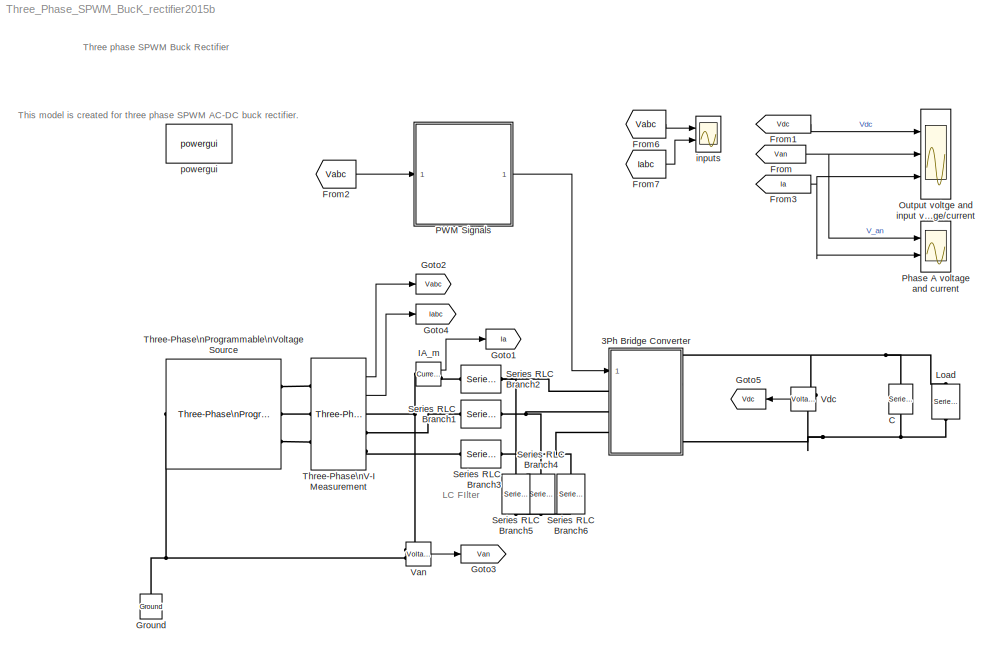
MODEL Three_Phase_SPWM_BucK_rectifier2015b
KIND model
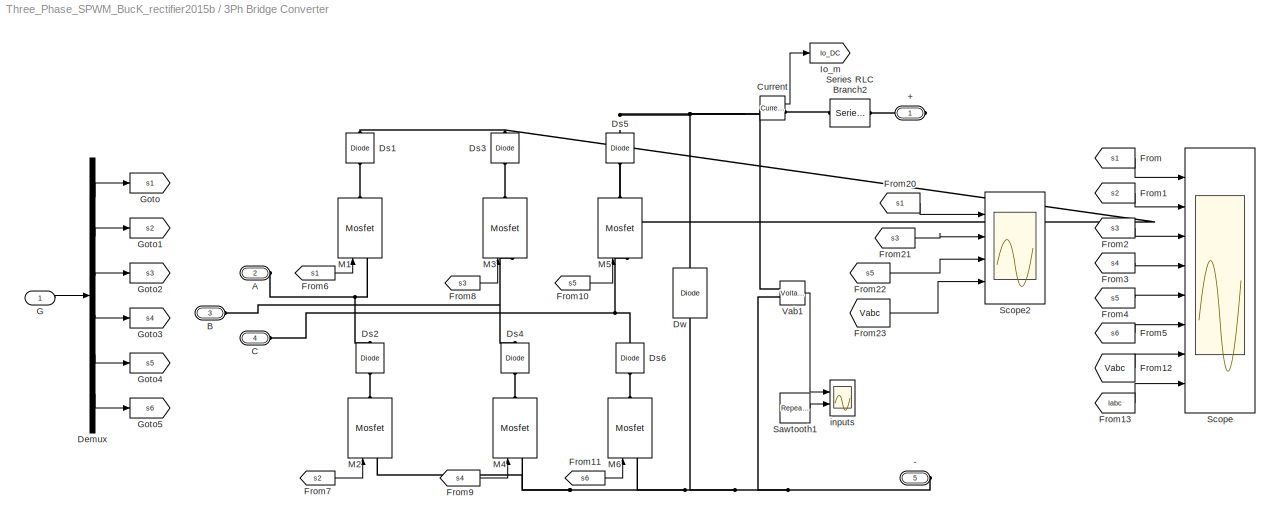
BLOCK [SubSystem] 3Ph Bridge Converter
  Ports = [1, 0, 0, 0, 0, 3, 2]
  RequestExecContextInheritance = off
  SID = 356
  Variant = off
BLOCK [PMIOPort] 3Ph Bridge Converter/+
  Port = 1
  SID = 377
  Side = Right
BLOCK [PMIOPort] 3Ph Bridge Converter/-
  Port = 5
  SID = 573
  Side = Right
BLOCK [PMIOPort] 3Ph Bridge Converter/A
  Port = 2
  SID = 378
  Side = Left
BLOCK [PMIOPort] 3Ph Bridge Converter/B
  Port = 3
  SID = 379
  Side = Left
BLOCK [PMIOPort] 3Ph Bridge Converter/C
  Port = 4
  SID = 380
  Side = Left
BLOCK [Reference] 3Ph Bridge Converter/Current  REF=powerlib/Measurements/Current Measurement
  OutputType = Complex
  PSBequivalent = 0
  PhasorSimulation = off
  Ports = [0, 1, 0, 0, 0, 1, 1]
  SID = 619
  SourceBlock = powerlib/Measurements/Current Measurement
  SourceType = Current Measurement
BLOCK [Demux] 3Ph Bridge Converter/Demux
  DisplayOption = bar
  Outputs = 6
  Ports = [1, 6]
  SID = 358
BLOCK [Reference] 3Ph Bridge Converter/Ds1  REF=powerlib/Power\nElectronics/Diode
  Cs = 250e-9
  IC = 0
  Lon = 0
  Measurements = off
  Ports = [0, 0, 0, 0, 0, 1, 1]
  Ron = 0.0001
  Rs = 5000
  SID = 729
  SourceBlock = powerlib/Power\nElectronics/Diode
  SourceType = Diode
  UseSnubber = off
  Vf = 0
BLOCK [Reference] 3Ph Bridge Converter/Ds2  REF=powerlib/Power\nElectronics/Diode
  Cs = 250e-9
  IC = 0
  Lon = 0
  Measurements = off
  Ports = [0, 0, 0, 0, 0, 1, 1]
  Ron = 0.0001
  Rs = 5000
  SID = 731
  SourceBlock = powerlib/Power\nElectronics/Diode
  SourceType = Diode
  UseSnubber = off
  Vf = 0
BLOCK [Reference] 3Ph Bridge Converter/Ds3  REF=powerlib/Power\nElectronics/Diode
  Cs = 250e-9
  IC = 0
  Lon = 0
  Measurements = off
  Ports = [0, 0, 0, 0, 0, 1, 1]
  Ron = 0.0001
  Rs = 5000
  SID = 732
  SourceBlock = powerlib/Power\nElectronics/Diode
  SourceType = Diode
  UseSnubber = off
  Vf = 0
BLOCK [Reference] 3Ph Bridge Converter/Ds4  REF=powerlib/Power\nElectronics/Diode
  Cs = 250e-9
  IC = 0
  Lon = 0
  Measurements = off
  Ports = [0, 0, 0, 0, 0, 1, 1]
  Ron = 0.0001
  Rs = 5000
  SID = 733
  SourceBlock = powerlib/Power\nElectronics/Diode
  SourceType = Diode
  UseSnubber = off
  Vf = 0
BLOCK [Reference] 3Ph Bridge Converter/Ds5  REF=powerlib/Power\nElectronics/Diode
  Cs = 250e-9
  IC = 0
  Lon = 0
  Measurements = off
  Ports = [0, 0, 0, 0, 0, 1, 1]
  Ron = 0.0001
  Rs = 5000
  SID = 734
  SourceBlock = powerlib/Power\nElectronics/Diode
  SourceType = Diode
  UseSnubber = off
  Vf = 0
BLOCK [Reference] 3Ph Bridge Converter/Ds6  REF=powerlib/Power\nElectronics/Diode
  Cs = 250e-9
  IC = 0
  Lon = 0
  Measurements = off
  Ports = [0, 0, 0, 0, 0, 1, 1]
  Ron = 0.0001
  Rs = 5000
  SID = 735
  SourceBlock = powerlib/Power\nElectronics/Diode
  SourceType = Diode
  UseSnubber = off
  Vf = 0
BLOCK [Reference] 3Ph Bridge Converter/Dw  REF=powerlib/Power\nElectronics/Diode
  Cs = 250e-9
  IC = 0
  Lon = 0
  Measurements = off
  Ports = [0, 0, 0, 0, 0, 1, 1]
  Ron = 0.0001
  Rs = 5000
  SID = 736
  SourceBlock = powerlib/Power\nElectronics/Diode
  SourceType = Diode
  UseSnubber = off
  Vf = 0
BLOCK [From] 3Ph Bridge Converter/From
  GotoTag = s1
  SID = 698
BLOCK [From] 3Ph Bridge Converter/From1
  GotoTag = s2
  SID = 699
BLOCK [From] 3Ph Bridge Converter/From10
  CloseFcn = tagdialog Close
  GotoTag = s5
  SID = 359
BLOCK [From] 3Ph Bridge Converter/From11
  CloseFcn = tagdialog Close
  GotoTag = s6
  SID = 360
BLOCK [From] 3Ph Bridge Converter/From12
  GotoTag = Vabc
  SID = 770
  TagVisibility = global
BLOCK [From] 3Ph Bridge Converter/From13
  GotoTag = Iabc
  SID = 772
  TagVisibility = global
BLOCK [From] 3Ph Bridge Converter/From2
  GotoTag = s3
  SID = 700
BLOCK [From] 3Ph Bridge Converter/From20
  GotoTag = s1
  SID = 760
BLOCK [From] 3Ph Bridge Converter/From21
  GotoTag = s3
  SID = 761
BLOCK [From] 3Ph Bridge Converter/From22
  GotoTag = s5
  SID = 762
BLOCK [From] 3Ph Bridge Converter/From23
  GotoTag = Vabc
  SID = 763
  TagVisibility = global
BLOCK [From] 3Ph Bridge Converter/From3
  GotoTag = s4
  SID = 701
BLOCK [From] 3Ph Bridge Converter/From4
  GotoTag = s5
  SID = 702
BLOCK [From] 3Ph Bridge Converter/From5
  GotoTag = s6
  SID = 703
BLOCK [From] 3Ph Bridge Converter/From6
  CloseFcn = tagdialog Close
  GotoTag = s1
  SID = 361
BLOCK [From] 3Ph Bridge Converter/From7
  CloseFcn = tagdialog Close
  GotoTag = s2
  SID = 362
BLOCK [From] 3Ph Bridge Converter/From8
  CloseFcn = tagdialog Close
  GotoTag = s3
  SID = 363
BLOCK [From] 3Ph Bridge Converter/From9
  CloseFcn = tagdialog Close
  GotoTag = s4
  SID = 364
BLOCK [Inport] 3Ph Bridge Converter/G
  IconDisplay = Port number
  SID = 357
BLOCK [Goto] 3Ph Bridge Converter/Goto
  GotoTag = s1
  SID = 365
BLOCK [Goto] 3Ph Bridge Converter/Goto1
  GotoTag = s2
  SID = 366
BLOCK [Goto] 3Ph Bridge Converter/Goto2
  GotoTag = s3
  SID = 367
BLOCK [Goto] 3Ph Bridge Converter/Goto3
  GotoTag = s4
  SID = 368
BLOCK [Goto] 3Ph Bridge Converter/Goto4
  GotoTag = s5
  SID = 369
BLOCK [Goto] 3Ph Bridge Converter/Goto5
  GotoTag = s6
  SID = 370
BLOCK [Goto] 3Ph Bridge Converter/Io_m
  GotoTag = Io_DC
  SID = 652
BLOCK [Reference] 3Ph Bridge Converter/M1  REF=powerlib/Power\nElectronics/Mosfet
  Cs = inf
  IC = 0
  Lon = 0
  Measurements = off
  Ports = [1, 0, 0, 0, 0, 1, 1]
  Rd = 0.01
  Ron = 0.1
  Rs = 1e5
  SID = 764
  SourceBlock = powerlib/Power\nElectronics/Mosfet
  SourceType = Mosfet
  Vfd = 0
BLOCK [Reference] 3Ph Bridge Converter/M2  REF=powerlib/Power\nElectronics/Mosfet
  Cs = inf
  IC = 0
  Lon = 0
  Measurements = off
  Ports = [1, 0, 0, 0, 0, 1, 1]
  Rd = 0.01
  Ron = 0.1
  Rs = 1e5
  SID = 765
  SourceBlock = powerlib/Power\nElectronics/Mosfet
  SourceType = Mosfet
  Vfd = 0
BLOCK [Reference] 3Ph Bridge Converter/M3  REF=powerlib/Power\nElectronics/Mosfet
  Cs = inf
  IC = 0
  Lon = 0
  Measurements = off
  Ports = [1, 0, 0, 0, 0, 1, 1]
  Rd = 0.01
  Ron = 0.1
  Rs = 1e5
  SID = 766
  SourceBlock = powerlib/Power\nElectronics/Mosfet
  SourceType = Mosfet
  Vfd = 0
BLOCK [Reference] 3Ph Bridge Converter/M4  REF=powerlib/Power\nElectronics/Mosfet
  Cs = inf
  IC = 0
  Lon = 0
  Measurements = off
  Ports = [1, 0, 0, 0, 0, 1, 1]
  Rd = 0.01
  Ron = 0.1
  Rs = 1e5
  SID = 767
  SourceBlock = powerlib/Power\nElectronics/Mosfet
  SourceType = Mosfet
  Vfd = 0
BLOCK [Reference] 3Ph Bridge Converter/M5  REF=powerlib/Power\nElectronics/Mosfet
  Cs = inf
  IC = 0
  Lon = 0
  Measurements = off
  Ports = [1, 0, 0, 0, 0, 1, 1]
  Rd = 0.01
  Ron = 0.1
  Rs = 1e5
  SID = 768
  SourceBlock = powerlib/Power\nElectronics/Mosfet
  SourceType = Mosfet
  Vfd = 0
BLOCK [Reference] 3Ph Bridge Converter/M6  REF=powerlib/Power\nElectronics/Mosfet
  Cs = inf
  IC = 0
  Lon = 0
  Measurements = off
  Ports = [1, 0, 0, 0, 0, 1, 1]
  Rd = 0.01
  Ron = 0.1
  Rs = 1e5
  SID = 769
  SourceBlock = powerlib/Power\nElectronics/Mosfet
  SourceType = Mosfet
  Vfd = 0
BLOCK [Reference] 3Ph Bridge Converter/Sawtooth1  REF=simulink/Sources/Repeating\nSequence
  Ports = [0, 1]
  SID = 777
  SourceBlock = simulink/Sources/Repeating\nSequence
  SourceType = Repeating table
  rep_seq_t = [0 1/10e3]
  rep_seq_y = [0 1]
BLOCK [Scope] 3Ph Bridge Converter/Scope
  NumInputPorts = 8
  Ports = [8]
  SID = 746
  ScopeSpecificationString = Simulink.scopes.TimeScopeBlockCfg('CurrentConfiguration', extmgr.ConfigurationSet(extmgr.Configuration('Core','General UI',true),extmgr.Configuration('Core','Source UI',true),extmgr.Configuration('Sources','WiredSimulink',true),extmgr.Configuration('Visuals','Time Domain',true,'SerializedDisplays',{struct('MinYLimReal','-0.125','MaxYLimReal','1.125','YLabelReal','','MinYLimMag','0.00000','MaxYLimM...<+6436ch>
BLOCK [Scope] 3Ph Bridge Converter/Scope2
  NumInputPorts = 4
  Ports = [4]
  SID = 759
  ScopeSpecificationString = Simulink.scopes.TimeScopeBlockCfg('CurrentConfiguration', extmgr.ConfigurationSet(extmgr.Configuration('Core','General UI',true,'FigureColor',[0.156862745098039 0.156862745098039 0.156862745098039]),extmgr.Configuration('Core','Source UI',true),extmgr.Configuration('Sources','WiredSimulink',true,'DataLoggingVariableName','ScopeData2','DataLoggingSaveFormat','StructureWithTime','DataLoggingMaxPoint...<+6515ch>
BLOCK [Reference] 3Ph Bridge Converter/Series RLC Branch2  REF=powerlib/Elements/Series RLC Branch
  BranchType = L
  Capacitance = 200e-6
  Inductance = 2.5e-3
  InitialCurrent = 0
  InitialVoltage = 0
  LConnTagsString = __new0
  Measurements = None
  Ports = [0, 0, 0, 0, 0, 1, 1]
  RConnTagsString = __new0
  Resistance = 0.1
  SID = 737
  SetiL0 = off
  Setx0 = off
  SourceBlock = powerlib/Elements/Series RLC Branch
  SourceType = Series RLC Branch
BLOCK [Reference] 3Ph Bridge Converter/Vab1  REF=powerlib/Measurements/Voltage Measurement
  AttributesFormatString = \\n
  OutputType = Magnitude
  PSBequivalent = 0
  PhasorSimulation = off
  Ports = [0, 1, 0, 0, 0, 2]
  SID = 711
  SourceBlock = powerlib/Measurements/Voltage Measurement
  SourceType = Voltage Measurement
  Tag = PoWeRsYsTeMmEaSuReMeNt
BLOCK [Scope] 3Ph Bridge Converter/inputs
  NumInputPorts = 2
  Ports = [2]
  SID = 776
  ScopeSpecificationString = Simulink.scopes.TimeScopeBlockCfg('CurrentConfiguration', extmgr.ConfigurationSet(extmgr.Configuration('Core','General UI',true),extmgr.Configuration('Core','Source UI',true),extmgr.Configuration('Sources','WiredSimulink',true,'DataLoggingVariableName','ScopeData1'),extmgr.Configuration('Visuals','Time Domain',true,'SerializedDisplays',{struct('MinYLimReal','-799.03716','MaxYLimReal','740.06352','...<+2179ch>
BLOCK [Reference] C  REF=powerlib/Elements/Series RLC Branch
  BranchType = C
  Capacitance = 1000e-6
  Inductance = 1e-3
  InitialCurrent = 0
  InitialVoltage = 0
  LConnTagsString = __new0
  Measurements = None
  Ports = [0, 0, 0, 0, 0, 1, 1]
  RConnTagsString = __new0
  Resistance = 1
  SID = 578
  SetiL0 = off
  Setx0 = off
  SourceBlock = powerlib/Elements/Series RLC Branch
  SourceType = Series RLC Branch
BLOCK [From] From
  GotoTag = Van
  SID = 624
  TagVisibility = global
BLOCK [From] From1
  GotoTag = Vdc
  SID = 43
  TagVisibility = global
BLOCK [From] From2
  GotoTag = Vabc
  SID = 724
  TagVisibility = global
BLOCK [From] From3
  GotoTag = Ia
  SID = 589
  TagVisibility = global
BLOCK [From] From6
  GotoTag = Vabc
  SID = 716
  TagVisibility = global
BLOCK [From] From7
  GotoTag = Iabc
  SID = 717
  TagVisibility = global
BLOCK [Goto] Goto1
  GotoTag = Ia
  SID = 623
  TagVisibility = global
BLOCK [Goto] Goto2
  GotoTag = Vabc
  SID = 654
  TagVisibility = global
BLOCK [Goto] Goto3
  GotoTag = Van
  SID = 602
  TagVisibility = global
BLOCK [Goto] Goto4
  GotoTag = Iabc
  SID = 688
  TagVisibility = global
BLOCK [Goto] Goto5
  GotoTag = Vdc
  SID = 21
  TagVisibility = global
BLOCK [Reference] Ground  REF=powerlib/Elements/Ground
  LConnTagsString = a
  Ports = [0, 0, 0, 0, 0, 1]
  SID = 627
  SourceBlock = powerlib/Elements/Ground
  SourceType = Ground
BLOCK [Reference] IA_m  REF=powerlib/Measurements/Current Measurement
  OutputType = Complex
  PSBequivalent = 0
  PhasorSimulation = off
  Ports = [0, 1, 0, 0, 0, 1, 1]
  SID = 622
  SourceBlock = powerlib/Measurements/Current Measurement
  SourceType = Current Measurement
BLOCK [Reference] Load  REF=powerlib/Elements/Series RLC Branch
  BranchType = R
  Capacitance = 0
  Inductance = 1e-3
  InitialCurrent = 0
  InitialVoltage = 0
  LConnTagsString = __new0
  Measurements = None
  Ports = [0, 0, 0, 0, 0, 1, 1]
  RConnTagsString = __new0
  Resistance = 10
  SID = 558
  SetiL0 = off
  Setx0 = off
  SourceBlock = powerlib/Elements/Series RLC Branch
  SourceType = Series RLC Branch
BLOCK [Scope] Output voltge and input voltage//current
  NumInputPorts = 3
  Ports = [3]
  SID = 738
  ScopeSpecificationString = Simulink.scopes.TimeScopeBlockCfg('CurrentConfiguration', extmgr.ConfigurationSet(extmgr.Configuration('Core','General UI',true),extmgr.Configuration('Core','Source UI',true),extmgr.Configuration('Sources','WiredSimulink',true),extmgr.Configuration('Visuals','Time Domain',true,'SerializedDisplays',{struct('MinYLimReal','377.69234','MaxYLimReal','476.87865','YLabelReal','','MinYLimMag','377.69234',...<+2938ch>
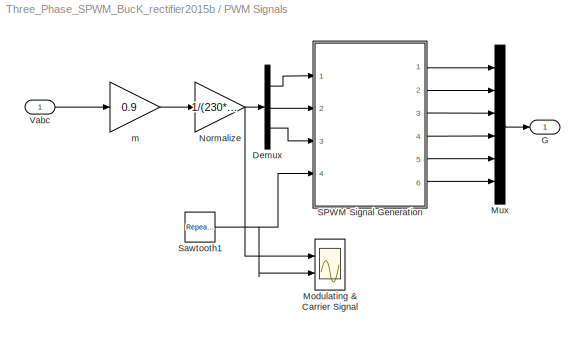
BLOCK [SubSystem] PWM Signals
  Ports = [1, 1]
  RequestExecContextInheritance = off
  SID = 634
  Variant = off
BLOCK [Demux] PWM Signals/Demux
  DisplayOption = bar
  Outputs = 3
  Ports = [1, 3]
  SID = 751
BLOCK [Outport] PWM Signals/G
  IconDisplay = Port number
  SID = 757
BLOCK [Scope] PWM Signals/Modulating & Carrier Signal 
  NumInputPorts = 2
  Ports = [2]
  SID = 774
  ScopeSpecificationString = Simulink.scopes.TimeScopeBlockCfg('CurrentConfiguration', extmgr.ConfigurationSet(extmgr.Configuration('Core','General UI',true,'FigureColor',[0.156862745098039 0.156862745098039 0.156862745098039]),extmgr.Configuration('Core','Source UI',true),extmgr.Configuration('Sources','WiredSimulink',true,'DataLoggingVariableName','ScopeData1','DataLoggingSaveFormat','StructureWithTime','DataLoggingMaxPoint...<+2311ch>
BLOCK [Mux] PWM Signals/Mux
  DisplayOption = bar
  Inputs = 6
  Ports = [6, 1]
  SID = 755
BLOCK [Gain] PWM Signals/Normalize
  Gain = 1/(230*1.414)
  OutDataTypeStr = Inherit: Inherit via internal rule
  ParamDataTypeStr = Inherit: Inherit via internal rule
  SID = 758
  SaturateOnIntegerOverflow = off
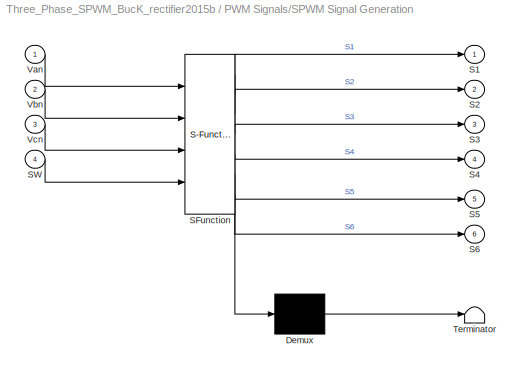
BLOCK [SubSystem] PWM Signals/SPWM Signal Generation
  ErrorFcn = Stateflow.Translate.translate
  PermitHierarchicalResolution = ExplicitOnly
  Ports = [4, 6]
  RequestExecContextInheritance = off
  SFBlockType = MATLAB Function
  SID = 752
  TreatAsAtomicUnit = on
  Variant = off
BLOCK [Demux] PWM Signals/SPWM Signal Generation/ Demux 
  Outputs = 1
  Ports = [1, 1]
  SID = 752::20
BLOCK [S-Function] PWM Signals/SPWM Signal Generation/ SFunction 
  EnableBusSupport = on
  FunctionName = sf_sfun
  PortCounts = [4 7]
  Ports = [4, 7]
  SFunctionDeploymentMode = off
  SID = 752::19
  Tag = Stateflow S-Function Three_Phase_SPWM_BucK_rectifier2015b 2
BLOCK [Terminator] PWM Signals/SPWM Signal Generation/ Terminator 
  SID = 752::21
BLOCK [Outport] PWM Signals/SPWM Signal Generation/S1
  IconDisplay = Port number
  SID = 752::5
BLOCK [Outport] PWM Signals/SPWM Signal Generation/S2
  IconDisplay = Port number
  Port = 2
  SID = 752::25
BLOCK [Outport] PWM Signals/SPWM Signal Generation/S3
  IconDisplay = Port number
  Port = 3
  SID = 752::26
BLOCK [Outport] PWM Signals/SPWM Signal Generation/S4
  IconDisplay = Port number
  Port = 4
  SID = 752::27
BLOCK [Outport] PWM Signals/SPWM Signal Generation/S5
  IconDisplay = Port number
  Port = 5
  SID = 752::28
BLOCK [Outport] PWM Signals/SPWM Signal Generation/S6
  IconDisplay = Port number
  Port = 6
  SID = 752::29
BLOCK [Inport] PWM Signals/SPWM Signal Generation/SW
  IconDisplay = Port number
  Port = 4
  SID = 752::24
BLOCK [Inport] PWM Signals/SPWM Signal Generation/Van
  IconDisplay = Port number
  SID = 752::1
BLOCK [Inport] PWM Signals/SPWM Signal Generation/Vbn
  IconDisplay = Port number
  Port = 2
  SID = 752::22
BLOCK [Inport] PWM Signals/SPWM Signal Generation/Vcn
  IconDisplay = Port number
  Port = 3
  SID = 752::23
BLOCK [Reference] PWM Signals/Sawtooth1  REF=simulink/Sources/Repeating\nSequence
  Ports = [0, 1]
  SID = 753
  SourceBlock = simulink/Sources/Repeating\nSequence
  SourceType = Repeating table
  rep_seq_t = [0 1/10e3]
  rep_seq_y = [0 1]
BLOCK [Inport] PWM Signals/Vabc
  IconDisplay = Port number
  SID = 756
BLOCK [Gain] PWM Signals/m
  Gain = 0.9
  OutDataTypeStr = Inherit: Inherit via internal rule
  ParamDataTypeStr = Inherit: Inherit via internal rule
  SID = 775
  SaturateOnIntegerOverflow = off
BLOCK [Scope] Phase A voltage and current
  NumInputPorts = 2
  Ports = [2]
  SID = 715
  ScopeSpecificationString = Simulink.scopes.TimeScopeBlockCfg('CurrentConfiguration', extmgr.ConfigurationSet(extmgr.Configuration('Core','General UI',true),extmgr.Configuration('Core','Source UI',true),extmgr.Configuration('Sources','WiredSimulink',true,'DataLoggingVariableName','ScopeData9','DataLoggingSaveFormat','StructureWithTime','DataLoggingMaxPoints','1000000','DataLoggingDecimation','1','DataLoggingDecimateData',tru...<+2188ch>
BLOCK [Reference] Series RLC Branch1  REF=powerlib/Elements/Series RLC Branch
  BranchType = L
  Capacitance = 200e-6
  Inductance = 1e-3
  InitialCurrent = 0
  InitialVoltage = 0
  LConnTagsString = __new0
  Measurements = None
  Ports = [0, 0, 0, 0, 0, 1, 1]
  RConnTagsString = __new0
  Resistance = .1
  SID = 586
  SetiL0 = off
  Setx0 = off
  SourceBlock = powerlib/Elements/Series RLC Branch
  SourceType = Series RLC Branch
BLOCK [Reference] Series RLC Branch2  REF=powerlib/Elements/Series RLC Branch
  BranchType = L
  Capacitance = 200e-6
  Inductance = 1e-3
  InitialCurrent = 0
  InitialVoltage = 0
  LConnTagsString = __new0
  Measurements = None
  Ports = [0, 0, 0, 0, 0, 1, 1]
  RConnTagsString = __new0
  Resistance = 0.1
  SID = 585
  SetiL0 = off
  Setx0 = off
  SourceBlock = powerlib/Elements/Series RLC Branch
  SourceType = Series RLC Branch
BLOCK [Reference] Series RLC Branch3  REF=powerlib/Elements/Series RLC Branch
  BranchType = L
  Capacitance = 200e-6
  Inductance = 1e-3
  InitialCurrent = 0
  InitialVoltage = 0
  LConnTagsString = __new0
  Measurements = None
  Ports = [0, 0, 0, 0, 0, 1, 1]
  RConnTagsString = __new0
  Resistance = 0.1
  SID = 587
  SetiL0 = off
  Setx0 = off
  SourceBlock = powerlib/Elements/Series RLC Branch
  SourceType = Series RLC Branch
BLOCK [Reference] Series RLC Branch4  REF=powerlib/Elements/Series RLC Branch
  BranchType = C
  Capacitance = 20e-6
  Inductance = 1e-3
  InitialCurrent = 0
  InitialVoltage = 0
  LConnTagsString = __new0
  Measurements = None
  Ports = [0, 0, 0, 0, 0, 1, 1]
  RConnTagsString = __new0
  Resistance = 0.1
  SID = 726
  SetiL0 = off
  Setx0 = off
  SourceBlock = powerlib/Elements/Series RLC Branch
  SourceType = Series RLC Branch
BLOCK [Reference] Series RLC Branch5  REF=powerlib/Elements/Series RLC Branch
  BranchType = C
  Capacitance = 20e-6
  Inductance = 1e-3
  InitialCurrent = 0
  InitialVoltage = 0
  LConnTagsString = __new0
  Measurements = None
  Ports = [0, 0, 0, 0, 0, 1, 1]
  RConnTagsString = __new0
  Resistance = 0.1
  SID = 727
  SetiL0 = off
  Setx0 = off
  SourceBlock = powerlib/Elements/Series RLC Branch
  SourceType = Series RLC Branch
BLOCK [Reference] Series RLC Branch6  REF=powerlib/Elements/Series RLC Branch
  BranchType = C
  Capacitance = 20e-6
  Inductance = 1e-3
  InitialCurrent = 0
  InitialVoltage = 0
  LConnTagsString = __new0
  Measurements = None
  Ports = [0, 0, 0, 0, 0, 1, 1]
  RConnTagsString = __new0
  Resistance = 0.1
  SID = 728
  SetiL0 = off
  Setx0 = off
  SourceBlock = powerlib/Elements/Series RLC Branch
  SourceType = Series RLC Branch
BLOCK [Reference] Three-Phase\nProgrammable\nVoltage Source  REF=powerlib/Electrical\nSources/Three-Phase\nProgrammable\nVoltage Source
  Amplitudes = [1 0.8 1.2 1.0]
  BusType = swing
  HarmonicA = [3 0.2 -25 0]
  HarmonicB = [2 0.15 35 2]
  HarmonicGeneration = off
  Ports = [0, 0, 0, 0, 0, 1, 3]
  PositiveSequence = [230*1.732  0 50]
  Pref = 0
  Qmax = inf
  Qmin = -inf
  Qref = 0
  SID = 621
  SourceBlock = powerlib/Electrical\nSources/Three-Phase\nProgrammable\nVoltage Source
  SourceType = Three-Phase Programmable Voltage Source
  TimeValues = [0 0.1 0.15 0.2]
  Timing = [0.05  3]
  VariationEntity = None
  VariationFrequency = 2
  VariationMagnitude = 0.3
  VariationPhaseA = off
  VariationRate = 10
  VariationStep = 0.5
  VariationTiming = [1 2]
  VariationType = Table of time-amplitude pairs
  VariationTypeAlt = Step
BLOCK [Reference] Three-Phase\nV-I Measurement  REF=powerlib/Measurements/Three-Phase\nV-I Measurement
  CurrentMeasurement = yes
  Ipu = off
  LabelI = Iabc
  LabelV = Vabc
  OutputType = Complex
  PSBequivalent = 0
  Pbase = 100e6
  PhasorSimulation = off
  Ports = [0, 2, 0, 0, 0, 3, 3]
  SID = 625
  SetLabelI = off
  SetLabelV = off
  SourceBlock = powerlib/Measurements/Three-Phase\nV-I Measurement
  SourceType = Three-Phase VI Measurement
  Vbase = 500e3
  VoltageMeasurement = phase-to-ground
  Vpu = off
  VpuLL = off
BLOCK [Reference] Van  REF=powerlib/Measurements/Voltage Measurement
  AttributesFormatString = \\n
  OutputType = Magnitude
  PSBequivalent = 0
  PhasorSimulation = off
  Ports = [0, 1, 0, 0, 0, 2]
  SID = 601
  SourceBlock = powerlib/Measurements/Voltage Measurement
  SourceType = Voltage Measurement
  Tag = PoWeRsYsTeMmEaSuReMeNt
BLOCK [Reference] Vdc   REF=powerlib/Measurements/Voltage Measurement
  AttributesFormatString = \\n
  OutputType = Magnitude
  PSBequivalent = 0
  PhasorSimulation = off
  Ports = [0, 1, 0, 0, 0, 2]
  SID = 23
  SourceBlock = powerlib/Measurements/Voltage Measurement
  SourceType = Voltage Measurement
  Tag = PoWeRsYsTeMmEaSuReMeNt
BLOCK [Scope] inputs
  NumInputPorts = 2
  Ports = [2]
  SID = 739
  ScopeSpecificationString = Simulink.scopes.TimeScopeBlockCfg('CurrentConfiguration', extmgr.ConfigurationSet(extmgr.Configuration('Core','General UI',true),extmgr.Configuration('Core','Source UI',true),extmgr.Configuration('Sources','WiredSimulink',true),extmgr.Configuration('Visuals','Time Domain',true,'SerializedDisplays',{struct('MinYLimReal','-406.57447','MaxYLimReal','406.57447','YLabelReal','','MinYLimMag',' 0.00000',...<+2205ch>
BLOCK [Reference] powergui  REF=powerlib/powergui
  CurrentSourceSwitches = off
  DisableRonSwitches = off
  DisableSnubberDevices = off
  DisableVfSwitches = off
  DisplayEquations = off
  DisplayStyle = 4
  EnableUseOfTLC = off
  ErrMax = 1e-4
  ExternalGateDelay = off
  Frange = [0:2:500]
  FreqAxis = on
  FunctionMessages = off
  HookPort = off
  Interpol = off
  Iterations = 50
  MaxFrequency = 650
  Pbase = 100e6
  Ports = []
  Priority = 1
  ResistiveCurrentMeasurement = off
  RestoreLinks = warning
  RmsSteady = 1
  SID = 2
  SPID = off
  SampleTime = 2e-6
  ShowGrid = off
  SolverType = Tustin
  SourceBlock = powerlib/powergui
  SourceType = PSB option menu block
  StartTime = 0.6
  SwTol = 0
  Ts = 100
  UnitsV = kV
  UnitsW = MW
  Xlog = on
  Ylog = off
  ZoomFFT = off
  buscounter = 0
  cycles = 4
  display = off
  echomessages = off
  frequency = 60
  frequencyindice = 0
  frequencyindicesteady = 1
  fundamental = 50
  methode = off
  save = off
  structure = ScopeData
  variable = ZData
  x0status = blocks
ANNOTATION (root): \n \n LC FIlter
ANNOTATION (root): \n \n This model is created for three phase SPWM AC-DC buck rectifier. \n
ANNOTATION (root): \n \n Three phase SPWM Buck Rectifier \n \n Created by : Amit Kumar Singh, National University of Singapore \n Email: <email>
LINE 3Ph Bridge Converter/Current:1 -> 3Ph Bridge Converter/Io_m:1
LINE 3Ph Bridge Converter/Demux:1 -> 3Ph Bridge Converter/Goto:1
LINE 3Ph Bridge Converter/Demux:2 -> 3Ph Bridge Converter/Goto1:1
LINE 3Ph Bridge Converter/Demux:3 -> 3Ph Bridge Converter/Goto2:1
LINE 3Ph Bridge Converter/Demux:4 -> 3Ph Bridge Converter/Goto3:1
LINE 3Ph Bridge Converter/Demux:5 -> 3Ph Bridge Converter/Goto4:1
LINE 3Ph Bridge Converter/Demux:6 -> 3Ph Bridge Converter/Goto5:1
LINE 3Ph Bridge Converter/From10:1 -> 3Ph Bridge Converter/M5:1
LINE 3Ph Bridge Converter/From11:1 -> 3Ph Bridge Converter/M6:1
LINE 3Ph Bridge Converter/From12:1 -> 3Ph Bridge Converter/Scope:7
LINE 3Ph Bridge Converter/From13:1 -> 3Ph Bridge Converter/Scope:8
LINE 3Ph Bridge Converter/From1:1 -> 3Ph Bridge Converter/Scope:2
LINE 3Ph Bridge Converter/From20:1 -> 3Ph Bridge Converter/Scope2:1
LINE 3Ph Bridge Converter/From21:1 -> 3Ph Bridge Converter/Scope2:2
LINE 3Ph Bridge Converter/From22:1 -> 3Ph Bridge Converter/Scope2:3
LINE 3Ph Bridge Converter/From23:1 -> 3Ph Bridge Converter/Scope2:4
LINE 3Ph Bridge Converter/From2:1 -> 3Ph Bridge Converter/Scope:3
LINE 3Ph Bridge Converter/From3:1 -> 3Ph Bridge Converter/Scope:4
LINE 3Ph Bridge Converter/From4:1 -> 3Ph Bridge Converter/Scope:5
LINE 3Ph Bridge Converter/From5:1 -> 3Ph Bridge Converter/Scope:6
LINE 3Ph Bridge Converter/From6:1 -> 3Ph Bridge Converter/M1:1
LINE 3Ph Bridge Converter/From7:1 -> 3Ph Bridge Converter/M2:1
LINE 3Ph Bridge Converter/From8:1 -> 3Ph Bridge Converter/M3:1
LINE 3Ph Bridge Converter/From9:1 -> 3Ph Bridge Converter/M4:1
LINE 3Ph Bridge Converter/From:1 -> 3Ph Bridge Converter/Scope:1
LINE 3Ph Bridge Converter/G:1 -> 3Ph Bridge Converter/Demux:1
LINE 3Ph Bridge Converter/Sawtooth1:1 -> 3Ph Bridge Converter/inputs:2
LINE 3Ph Bridge Converter/Vab1:1 -> 3Ph Bridge Converter/inputs:1
LINE From1:1 -> Output voltge and input voltage//current:1
LINE From2:1 -> PWM Signals:1
NET From3:1 -> Output voltge and input voltage//current:3, Phase A voltage and current:2
LINE From6:1 -> inputs:1
LINE From7:1 -> inputs:2
NET From:1 -> Output voltge and input voltage//current:2, Phase A voltage and current:1
LINE IA_m:1 -> Goto1:1
LINE PWM Signals/Demux:1 -> PWM Signals/SPWM Signal Generation:1
LINE PWM Signals/Demux:2 -> PWM Signals/SPWM Signal Generation:2
LINE PWM Signals/Demux:3 -> PWM Signals/SPWM Signal Generation:3
LINE PWM Signals/Mux:1 -> PWM Signals/G:1
NET PWM Signals/Normalize:1 -> PWM Signals/Demux:1, PWM Signals/Modulating & Carrier Signal :1
LINE PWM Signals/SPWM Signal Generation/ Demux :1 -> PWM Signals/SPWM Signal Generation/ Terminator :1
LINE PWM Signals/SPWM Signal Generation/ SFunction :1 -> PWM Signals/SPWM Signal Generation/ Demux :1
LINE PWM Signals/SPWM Signal Generation/ SFunction :2 -> PWM Signals/SPWM Signal Generation/S1:1
LINE PWM Signals/SPWM Signal Generation/ SFunction :3 -> PWM Signals/SPWM Signal Generation/S2:1
LINE PWM Signals/SPWM Signal Generation/ SFunction :4 -> PWM Signals/SPWM Signal Generation/S3:1
LINE PWM Signals/SPWM Signal Generation/ SFunction :5 -> PWM Signals/SPWM Signal Generation/S4:1
LINE PWM Signals/SPWM Signal Generation/ SFunction :6 -> PWM Signals/SPWM Signal Generation/S5:1
LINE PWM Signals/SPWM Signal Generation/ SFunction :7 -> PWM Signals/SPWM Signal Generation/S6:1
LINE PWM Signals/SPWM Signal Generation/SW:1 -> PWM Signals/SPWM Signal Generation/ SFunction :4
LINE PWM Signals/SPWM Signal Generation/Van:1 -> PWM Signals/SPWM Signal Generation/ SFunction :1
LINE PWM Signals/SPWM Signal Generation/Vbn:1 -> PWM Signals/SPWM Signal Generation/ SFunction :2
LINE PWM Signals/SPWM Signal Generation/Vcn:1 -> PWM Signals/SPWM Signal Generation/ SFunction :3
LINE PWM Signals/SPWM Signal Generation:1 -> PWM Signals/Mux:1
LINE PWM Signals/SPWM Signal Generation:2 -> PWM Signals/Mux:2
LINE PWM Signals/SPWM Signal Generation:3 -> PWM Signals/Mux:3
LINE PWM Signals/SPWM Signal Generation:4 -> PWM Signals/Mux:4
LINE PWM Signals/SPWM Signal Generation:5 -> PWM Signals/Mux:5
LINE PWM Signals/SPWM Signal Generation:6 -> PWM Signals/Mux:6
NET PWM Signals/Sawtooth1:1 -> PWM Signals/Modulating & Carrier Signal :2, PWM Signals/SPWM Signal Generation:4
LINE PWM Signals/Vabc:1 -> PWM Signals/m:1
LINE PWM Signals/m:1 -> PWM Signals/Normalize:1
LINE PWM Signals:1 -> 3Ph Bridge Converter:1
LINE Three-Phase\nV-I Measurement:1 -> Goto2:1
LINE Three-Phase\nV-I Measurement:2 -> Goto4:1
LINE Van:1 -> Goto3:1
LINE Vdc :1 -> Goto5:1
PLINE 3Ph Bridge Converter/+:RConn1 -- 3Ph Bridge Converter/Series RLC Branch2:LConn1
PNET net1: 3Ph Bridge Converter/-:RConn1 -- 3Ph Bridge Converter/Dw:LConn1 -- 3Ph Bridge Converter/M2:LConn1 -- 3Ph Bridge Converter/M4:LConn1 -- 3Ph Bridge Converter/M6:LConn1 -- 3Ph Bridge Converter/Vab1:LConn2
PNET net2: 3Ph Bridge Converter/A:RConn1 -- 3Ph Bridge Converter/Ds2:RConn1 -- 3Ph Bridge Converter/M1:LConn1
PNET net3: 3Ph Bridge Converter/B:RConn1 -- 3Ph Bridge Converter/Ds4:RConn1 -- 3Ph Bridge Converter/M3:LConn1
PNET net4: 3Ph Bridge Converter/C:RConn1 -- 3Ph Bridge Converter/Ds6:RConn1 -- 3Ph Bridge Converter/M5:LConn1
PNET net5: 3Ph Bridge Converter/Current:LConn1 -- 3Ph Bridge Converter/Ds1:RConn1 -- 3Ph Bridge Converter/Ds3:RConn1 -- 3Ph Bridge Converter/Ds5:RConn1 -- 3Ph Bridge Converter/Dw:RConn1 -- 3Ph Bridge Converter/Vab1:LConn1
PLINE 3Ph Bridge Converter/Current:RConn1 -- 3Ph Bridge Converter/Series RLC Branch2:RConn1
PLINE 3Ph Bridge Converter/Ds1:LConn1 -- 3Ph Bridge Converter/M1:RConn1
PLINE 3Ph Bridge Converter/Ds2:LConn1 -- 3Ph Bridge Converter/M2:RConn1
PLINE 3Ph Bridge Converter/Ds3:LConn1 -- 3Ph Bridge Converter/M3:RConn1
PLINE 3Ph Bridge Converter/Ds4:LConn1 -- 3Ph Bridge Converter/M4:RConn1
PLINE 3Ph Bridge Converter/Ds5:LConn1 -- 3Ph Bridge Converter/M5:RConn1
PLINE 3Ph Bridge Converter/Ds6:LConn1 -- 3Ph Bridge Converter/M6:RConn1
PNET net6: 3Ph Bridge Converter:LConn1 -- Series RLC Branch2:LConn1 -- Series RLC Branch5:LConn1
PNET net7: 3Ph Bridge Converter:LConn2 -- Series RLC Branch1:LConn1 -- Series RLC Branch4:LConn1
PNET net8: 3Ph Bridge Converter:LConn3 -- Series RLC Branch3:LConn1 -- Series RLC Branch6:LConn1
PNET net9: 3Ph Bridge Converter:RConn1 -- C:LConn1 -- Load:LConn1 -- Vdc :LConn1
PNET net10: 3Ph Bridge Converter:RConn2 -- C:RConn1 -- Load:RConn1 -- Vdc :LConn2
PNET net11: Ground:LConn1 -- Three-Phase\nProgrammable\nVoltage Source:LConn1 -- Van:LConn2
PNET net12: IA_m:LConn1 -- Three-Phase\nV-I Measurement:RConn1 -- Van:LConn1
PLINE IA_m:RConn1 -- Series RLC Branch2:RConn1
PLINE Series RLC Branch1:RConn1 -- Three-Phase\nV-I Measurement:RConn2
PLINE Series RLC Branch3:RConn1 -- Three-Phase\nV-I Measurement:RConn3
PNET net13: Series RLC Branch4:RConn1 -- Series RLC Branch5:RConn1 -- Series RLC Branch6:RConn1
PLINE Three-Phase\nProgrammable\nVoltage Source:RConn1 -- Three-Phase\nV-I Measurement:LConn1
PLINE Three-Phase\nProgrammable\nVoltage Source:RConn2 -- Three-Phase\nV-I Measurement:LConn2
PLINE Three-Phase\nProgrammable\nVoltage Source:RConn3 -- Three-Phase\nV-I Measurement:LConn3
note: NET lines group one-source signal fan-out (src -> all destinations, sorted); 1:1 wires keep LINE; PNET lines group multi-terminal physical nets as a canonical sorted terminal list (undirected conserving connections); 2-terminal nets keep the pairwise PLINE form
CHART PWM Signals/SPWM Signal Generation states=1 transitions=1
  STATE_LABEL 'eML_blk_kernel()'
